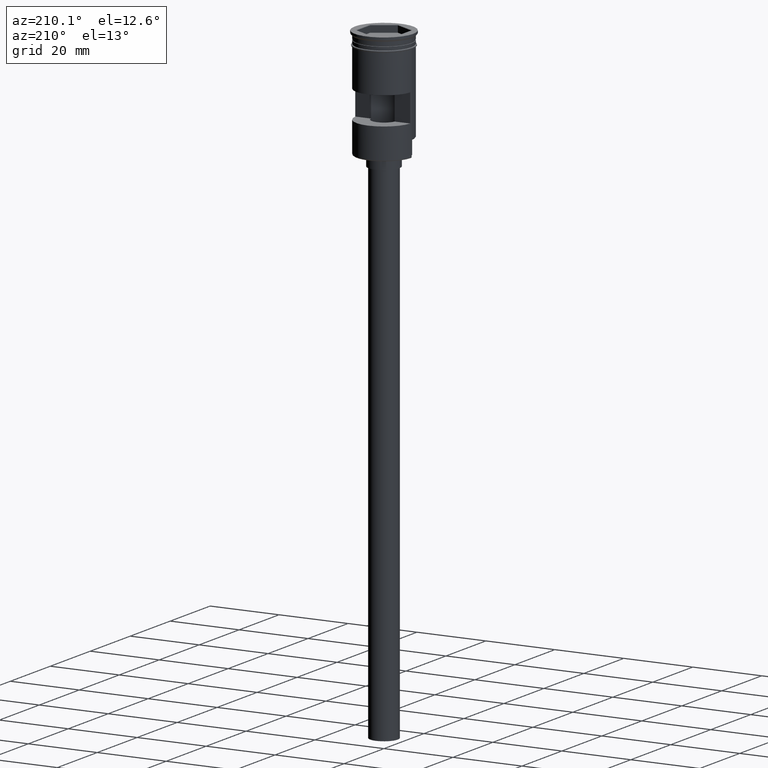
[diagram: clean part render]
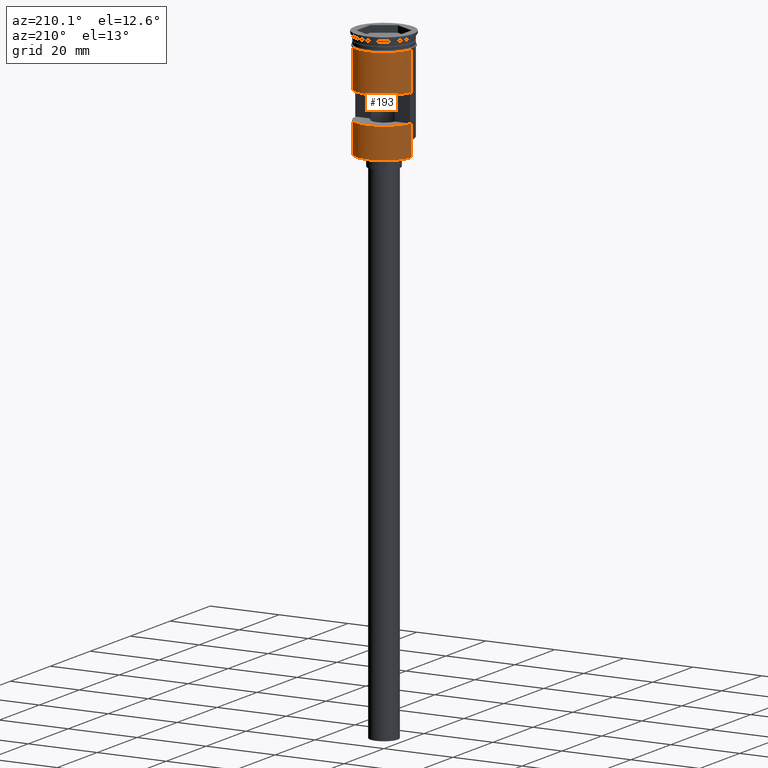
[diagram: same view with one face highlighted and labeled with its STEP entity id]
A machine part, auxiliary view. The second image highlights one B-rep face of the part: STEP entity #193.
In plain terms, the highlighted cylindrical surface (edge-blend (fillet) strip) has radius 8 mm, axis along (-0, -0, 1).
Its self-contained STEP definition (entity closure, byte-faithful):
#67 = CIRCLE ( 'NONE', #457, 7.999999999999996447 ) ;
#84 = CARTESIAN_POINT ( 'NONE',  ( 7.977468270071648604, 0.6000000000000000888, 0.000000000000000000 ) ) ;
#94 = DIRECTION ( 'NONE',  ( -1.000000000000000000, 0.000000000000000000, 0.000000000000000000 ) ) ;
#114 = CARTESIAN_POINT ( 'NONE',  ( 0.000000000000000000, 0.000000000000000000, -23.00000000000000000 ) ) ;
#193 = ADVANCED_FACE ( 'NONE', ( #971, #1452 ), #1185, .T. ) ;
#228 = DIRECTION ( 'NONE',  ( -0.000000000000000000, -0.000000000000000000, 1.000000000000000000 ) ) ;
#239 = CARTESIAN_POINT ( 'NONE',  ( 7.977468270071646828, 0.6000000000000000888, -23.00000000000000000 ) ) ;
#252 = ORIENTED_EDGE ( 'NONE', *, *, #1123, .F. ) ;
#282 = CARTESIAN_POINT ( 'NONE',  ( -7.999999999999996447, 9.797174393178821713E-16, 0.000000000000000000 ) ) ;
#283 = EDGE_CURVE ( 'NONE', #772, #602, #1425, .T. ) ;
#374 = EDGE_CURVE ( 'NONE', #534, #848, #780, .T. ) ;
#391 = VERTEX_POINT ( 'NONE', #1535 ) ;
#393 = DIRECTION ( 'NONE',  ( -0.000000000000000000, -0.000000000000000000, 1.000000000000000000 ) ) ;
#401 = DIRECTION ( 'NONE',  ( -0.000000000000000000, 2.344220913482172642E-16, -1.000000000000000000 ) ) ;
#426 = ORIENTED_EDGE ( 'NONE', *, *, #540, .F. ) ;
#455 = EDGE_CURVE ( 'NONE', #391, #772, #596, .T. ) ;
#457 = AXIS2_PLACEMENT_3D ( 'NONE', #541, #401, #1261 ) ;
#477 = ORIENTED_EDGE ( 'NONE', *, *, #283, .F. ) ;
#481 = EDGE_LOOP ( 'NONE', ( #426, #822, #1588, #542 ) ) ;
#486 = EDGE_CURVE ( 'NONE', #1541, #955, #1581, .T. ) ;
#504 = CARTESIAN_POINT ( 'NONE',  ( 0.000000000000000000, 0.000000000000000000, -31.79999999999997939 ) ) ;
#526 = VECTOR ( 'NONE', #1319, 1000.000000000000000 ) ;
#534 = VERTEX_POINT ( 'NONE', #821 ) ;
#540 = EDGE_CURVE ( 'NONE', #798, #1147, #1183, .T. ) ;
#541 = CARTESIAN_POINT ( 'NONE',  ( 0.000000000000000000, 0.000000000000000000, -15.00000000000000000 ) ) ;
#542 = ORIENTED_EDGE ( 'NONE', *, *, #1397, .F. ) ;
#549 = ORIENTED_EDGE ( 'NONE', *, *, #1562, .T. ) ;
#555 = VECTOR ( 'NONE', #1407, 1000.000000000000000 ) ;
#587 = CARTESIAN_POINT ( 'NONE',  ( 7.999999999999992895, 9.797174393178817769E-16, -32.00000000000000000 ) ) ;
#589 = CARTESIAN_POINT ( 'NONE',  ( 0.000000000000000000, 0.000000000000000000, 0.000000000000000000 ) ) ;
#596 = LINE ( 'NONE', #587, #943 ) ;
#599 = DIRECTION ( 'NONE',  ( -0.000000000000000000, -0.000000000000000000, 1.000000000000000000 ) ) ;
#602 = VERTEX_POINT ( 'NONE', #1489 ) ;
#615 = AXIS2_PLACEMENT_3D ( 'NONE', #504, #769, #1256 ) ;
#619 = CARTESIAN_POINT ( 'NONE',  ( 7.999999999999996447, 9.797174393178821713E-16, -27.29999999999996518 ) ) ;
#696 = CARTESIAN_POINT ( 'NONE',  ( -7.977468270071648604, 0.6000000000000000888, 0.000000000000000000 ) ) ;
#713 = CIRCLE ( 'NONE', #615, 7.999999999999996447 ) ;
#731 = AXIS2_PLACEMENT_3D ( 'NONE', #589, #979, #1321 ) ;
#738 = CARTESIAN_POINT ( 'NONE',  ( -7.977468270071648604, 0.6000000000000000888, -23.00000000000000000 ) ) ;
#744 = EDGE_LOOP ( 'NONE', ( #1190, #938, #252, #477, #1002, #549 ) ) ;
#769 = DIRECTION ( 'NONE',  ( 0.000000000000000000, 0.000000000000000000, 1.000000000000000000 ) ) ;
#772 = VERTEX_POINT ( 'NONE', #619 ) ;
#778 = CARTESIAN_POINT ( 'NONE',  ( -8.000000000000000000, 9.797174393178825657E-16, -3.999999999999997335 ) ) ;
#780 = LINE ( 'NONE', #1028, #915 ) ;
#798 = VERTEX_POINT ( 'NONE', #1576 ) ;
#821 = CARTESIAN_POINT ( 'NONE',  ( -7.999999999999992895, 0.000000000000000000, -31.79999999999997939 ) ) ;
#822 = ORIENTED_EDGE ( 'NONE', *, *, #962, .F. ) ;
#848 = VERTEX_POINT ( 'NONE', #952 ) ;
#906 = EDGE_CURVE ( 'NONE', #848, #969, #1129, .T. ) ;
#915 = VECTOR ( 'NONE', #1528, 1000.000000000000000 ) ;
#938 = ORIENTED_EDGE ( 'NONE', *, *, #906, .T. ) ;
#943 = VECTOR ( 'NONE', #1189, 1000.000000000000000 ) ;
#952 = CARTESIAN_POINT ( 'NONE',  ( -7.999999999999992895, 0.000000000000000000, -27.29999999999996518 ) ) ;
#955 = VERTEX_POINT ( 'NONE', #1005 ) ;
#956 = DIRECTION ( 'NONE',  ( 1.000000000000000000, 0.000000000000000000, 0.000000000000000000 ) ) ;
#962 = EDGE_CURVE ( 'NONE', #955, #798, #67, .T. ) ;
#969 = VERTEX_POINT ( 'NONE', #778 ) ;
#971 = FACE_BOUND ( 'NONE', #481, .T. ) ;
#979 = DIRECTION ( 'NONE',  ( -0.000000000000000000, -0.000000000000000000, 1.000000000000000000 ) ) ;
#1002 = ORIENTED_EDGE ( 'NONE', *, *, #455, .F. ) ;
#1005 = CARTESIAN_POINT ( 'NONE',  ( -7.977468270071648604, 0.6000000000000000888, -15.00000000000000000 ) ) ;
#1023 = CARTESIAN_POINT ( 'NONE',  ( 7.999999999999996447, 0.000000000000000000, 0.000000000000000000 ) ) ;
#1028 = CARTESIAN_POINT ( 'NONE',  ( -7.999999999999992895, 0.000000000000000000, -32.00000000000000000 ) ) ;
#1123 = EDGE_CURVE ( 'NONE', #602, #969, #1546, .T. ) ;
#1129 = LINE ( 'NONE', #282, #1463 ) ;
#1143 = AXIS2_PLACEMENT_3D ( 'NONE', #1339, #599, #956 ) ;
#1147 = VERTEX_POINT ( 'NONE', #239 ) ;
#1183 = LINE ( 'NONE', #84, #526 ) ;
#1185 = CYLINDRICAL_SURFACE ( 'NONE', #731, 7.999999999999996447 ) ;
#1189 = DIRECTION ( 'NONE',  ( -0.000000000000000000, -0.000000000000000000, 1.000000000000000000 ) ) ;
#1190 = ORIENTED_EDGE ( 'NONE', *, *, #374, .T. ) ;
#1195 = CIRCLE ( 'NONE', #1196, 7.999999999999996447 ) ;
#1196 = AXIS2_PLACEMENT_3D ( 'NONE', #114, #1331, #94 ) ;
#1256 = DIRECTION ( 'NONE',  ( -1.000000000000000000, 0.000000000000000000, 0.000000000000000000 ) ) ;
#1261 = DIRECTION ( 'NONE',  ( 0.000000000000000000, -1.000000000000000000, -2.168404344971009854E-16 ) ) ;
#1299 = VECTOR ( 'NONE', #228, 1000.000000000000000 ) ;
#1319 = DIRECTION ( 'NONE',  ( 0.000000000000000000, 0.000000000000000000, -1.000000000000000000 ) ) ;
#1321 = DIRECTION ( 'NONE',  ( 1.000000000000000000, 0.000000000000000000, 0.000000000000000000 ) ) ;
#1331 = DIRECTION ( 'NONE',  ( 0.000000000000000000, 0.000000000000000000, 1.000000000000000000 ) ) ;
#1339 = CARTESIAN_POINT ( 'NONE',  ( 0.000000000000000000, 0.000000000000000000, -3.999999999999997335 ) ) ;
#1397 = EDGE_CURVE ( 'NONE', #1147, #1541, #1195, .T. ) ;
#1407 = DIRECTION ( 'NONE',  ( -0.000000000000000000, -0.000000000000000000, 1.000000000000000000 ) ) ;
#1425 = LINE ( 'NONE', #1023, #555 ) ;
#1452 = FACE_OUTER_BOUND ( 'NONE', #744, .T. ) ;
#1463 = VECTOR ( 'NONE', #393, 1000.000000000000000 ) ;
#1489 = CARTESIAN_POINT ( 'NONE',  ( 8.000000000000000000, 0.000000000000000000, -3.999999999999997335 ) ) ;
#1528 = DIRECTION ( 'NONE',  ( -0.000000000000000000, -0.000000000000000000, 1.000000000000000000 ) ) ;
#1535 = CARTESIAN_POINT ( 'NONE',  ( 7.999999999999992895, 9.797174393178817769E-16, -31.79999999999997939 ) ) ;
#1541 = VERTEX_POINT ( 'NONE', #738 ) ;
#1546 = CIRCLE ( 'NONE', #1143, 8.000000000000000000 ) ;
#1562 = EDGE_CURVE ( 'NONE', #391, #534, #713, .T. ) ;
#1576 = CARTESIAN_POINT ( 'NONE',  ( 7.977468270071646828, 0.6000000000000000888, -15.00000000000000000 ) ) ;
#1581 = LINE ( 'NONE', #696, #1299 ) ;
#1588 = ORIENTED_EDGE ( 'NONE', *, *, #486, .F. ) ;